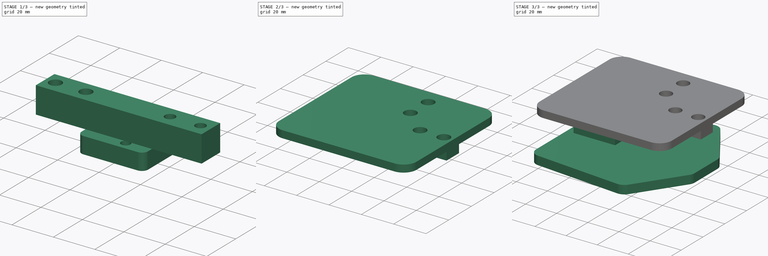
[diagram: build sequence overview — one tinted view per stage of 3, left to right]
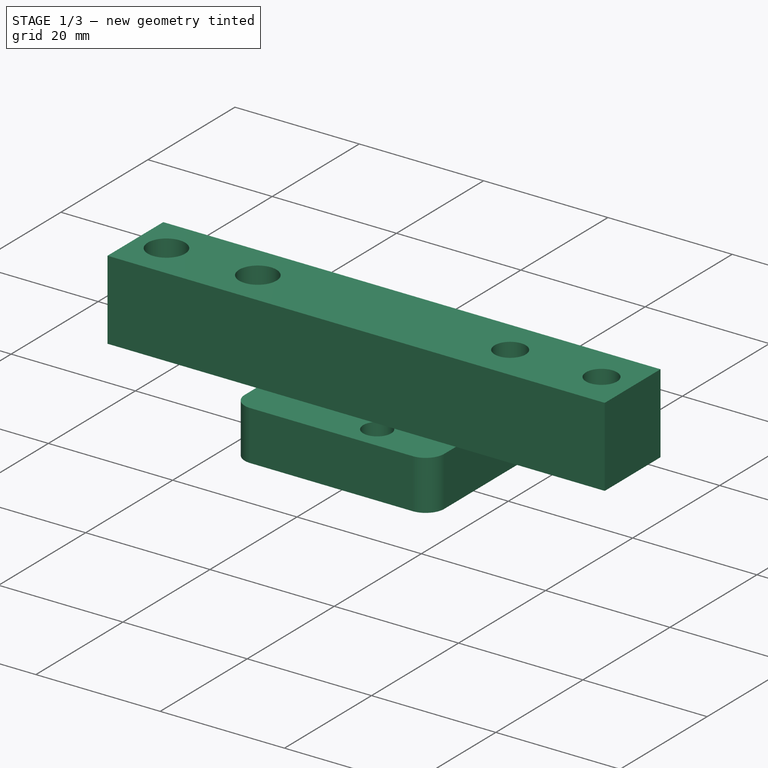
[diagram: stage 1 of 3 — iso view after this stage's code; geometry added in this stage tinted green]
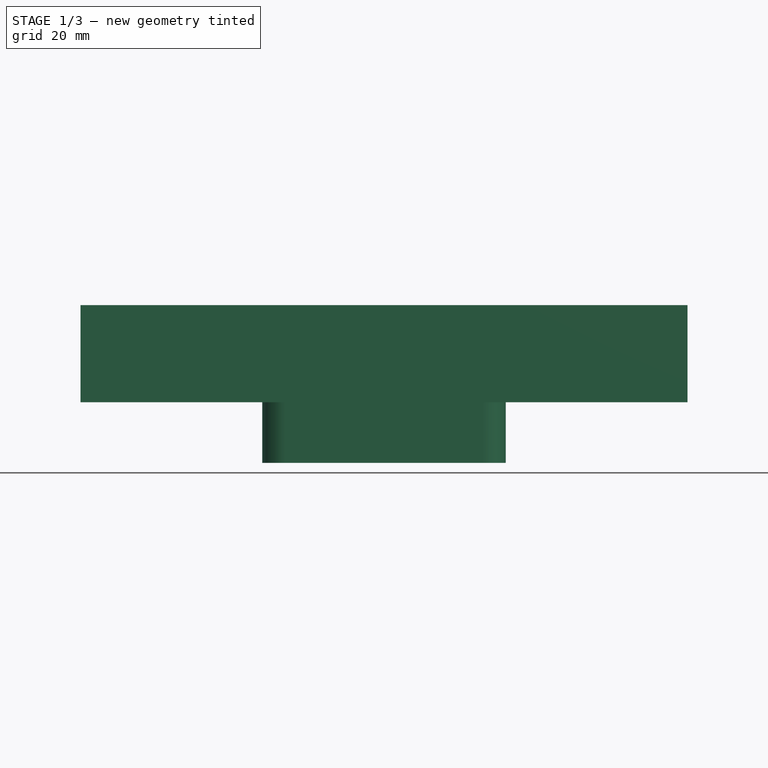
[diagram: stage 1 of 3 — front view after this stage's code; geometry added in this stage tinted green]
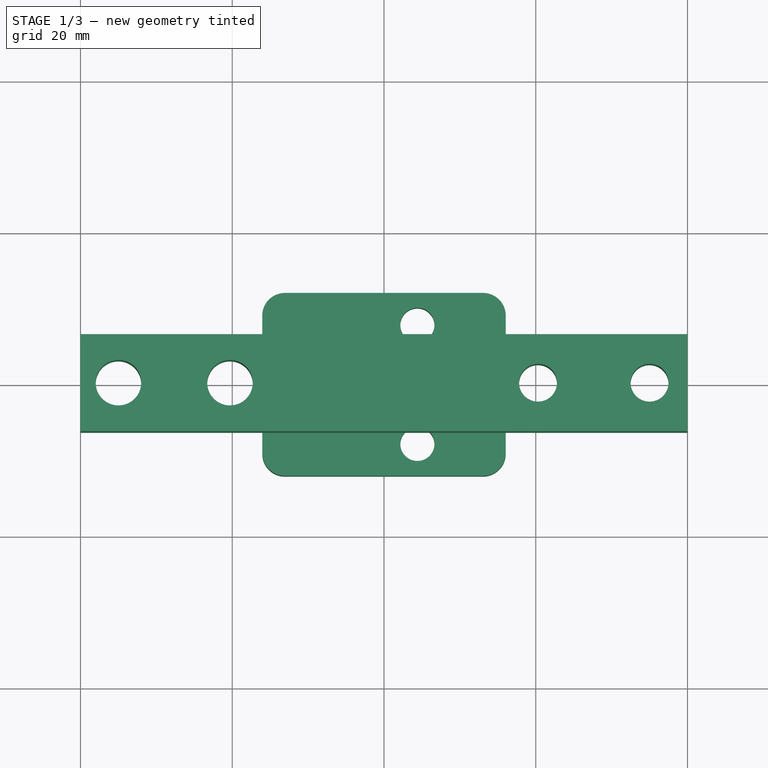
[diagram: stage 1 of 3 — top view after this stage's code; geometry added in this stage tinted green]
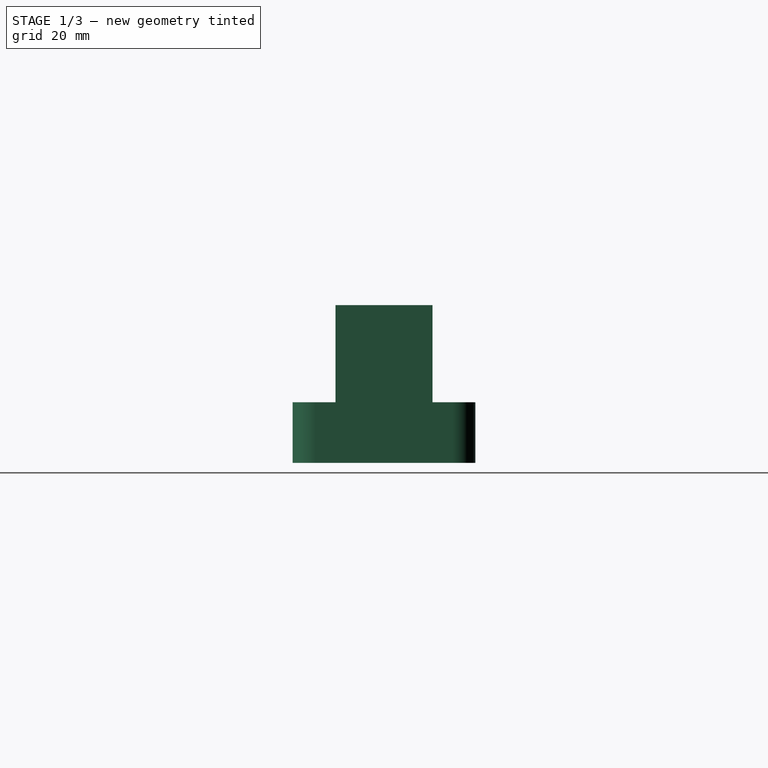
[diagram: stage 1 of 3 — right view after this stage's code; geometry added in this stage tinted green]
FCSTD DOCUMENT  (FreeCAD 1.0RUnknown)
Label: ScalesV2
License: All rights reserved
LicenseURL: https://en.wikipedia.org/wiki/All_rights_reserved
objects: Sketcher::SketchObject×7, PartDesign::Pad×7, PartDesign::Body×4, PartDesign::ShapeBinder×3
note: 42 computed .brp shape members not serialized (recipe doc carries the construction recipe); baked Part::Feature solids carry a one-line shape summary decoded from their .brp

FEATURE [Sketcher::SketchObject] Sketch
  ArcFitTolerance = 1e-06
  AttachmentSupport = -> [XY_Plane]
  FullyConstrained = true
  MakeInternals = false
  MapMode = 5
  sketch-geometry (9):
    g0: LineSegment StartX=40 StartY=-6.4 StartZ=0 EndX=40 EndY=6.4 EndZ=0
    g1: LineSegment StartX=40 StartY=6.4 StartZ=0 EndX=-40 EndY=6.4 EndZ=0
    g2: LineSegment StartX=-40 StartY=6.4 StartZ=0 EndX=-40 EndY=-6.4 EndZ=0
    g3: LineSegment StartX=-40 StartY=-6.4 StartZ=0 EndX=40 EndY=-6.4 EndZ=0
    g4: GeomPoint [constr] X=0 Y=0 Z=0
    g5: Circle CenterX=-35 CenterY=0 CenterZ=0 NormalX=0 NormalY=0 NormalZ=1 AngleXU=0 Radius=3
    g6: Circle CenterX=-20.3 CenterY=0 CenterZ=0 NormalX=0 NormalY=0 NormalZ=1 AngleXU=0 Radius=3
    g7: Circle CenterX=20.3 CenterY=0 CenterZ=0 NormalX=0 NormalY=0 NormalZ=1 AngleXU=0 Radius=2.5
    g8: Circle CenterX=35 CenterY=0 CenterZ=0 NormalX=0 NormalY=0 NormalZ=1 AngleXU=0 Radius=2.5
  constraints (25):
    c: Coincident(g0,g1)
    c: Coincident(g1,g2)
    c: Coincident(g2,g3)
    c: Coincident(g3,g0)
    c: Vertical(g0)
    c: Vertical(g2)
    c: Horizontal(g1)
    c: Horizontal(g3)
    c: Symmetric(g2,g0,g4)
    c: Coincident(g4,g-1)
    c: DistanceX(g1,g1) = 80
    c: Distance(g2,g2) = 12.8
    c: PointOnObject(g5,g-1)
    c: PointOnObject(g6,g-1)
    c: PointOnObject(g7,g-1)
    c: PointOnObject(g8,g-1)
    c: Diameter(g5) = 6
    c: Diameter(g7) = 5
    c: Equal(g5,g6)
    c: Equal(g7,g8)
    c: Distance(g5,g2) = 2
    c: Distance(g5,g6) = 8.7
    c: Distance(g8,g0) = 2.5
    c: Distance(g7,g8) = 9.7
    c: Distance(g6,g7) = 35.1
FEATURE [PartDesign::Pad] Pad
  Direction = (0,0,1)
  Length = 12.8
  Length2 = 10
  Profile = -> Sketch
  ReferenceAxis = -> Sketch [N_Axis]
  Refine = true
  Suppressed = false
  Type = 0
FEATURE [Sketcher::SketchObject] Sketch005
  ArcFitTolerance = 1e-06
  AttachmentSupport = -> [XY_Plane003]
  FullyConstrained = true
  MakeInternals = false
  MapMode = 5
  sketch-geometry (15):
    g0: LineSegment StartX=-13.05 StartY=-12.05 StartZ=0 EndX=13.05 EndY=-12.05 EndZ=0
    g1: LineSegment StartX=16.05 StartY=-9.05 StartZ=0 EndX=16.05 EndY=9.05 EndZ=0
    g2: LineSegment StartX=13.05 StartY=12.05 StartZ=0 EndX=-13.05 EndY=12.05 EndZ=0
    g3: LineSegment StartX=-16.05 StartY=9.05 StartZ=0 EndX=-16.05 EndY=-9.05 EndZ=0
    g4: GeomPoint [constr] X=0 Y=0 Z=0
    g5: Circle CenterX=4.4 CenterY=7.85 CenterZ=0 NormalX=0 NormalY=0 NormalZ=1 AngleXU=0 Radius=2.25
    g6: Circle CenterX=4.4 CenterY=-7.85 CenterZ=0 NormalX=0 NormalY=0 NormalZ=1 AngleXU=0 Radius=2.25
    g7: ArcOfCircle CenterX=13.05 CenterY=9.05 CenterZ=0 NormalX=0 NormalY=0 NormalZ=1 AngleXU=0 Radius=3 StartAngle=-4.3396e-12 EndAngle=1.5708
    g8: GeomPoint [constr] X=16.05 Y=12.05 Z=0
    g9: ArcOfCircle CenterX=-13.05 CenterY=9.05 CenterZ=0 NormalX=0 NormalY=0 NormalZ=1 AngleXU=0 Radius=3 StartAngle=1.5708 EndAngle=3.14159
    g10: GeomPoint [constr] X=-16.05 Y=12.05 Z=0
    g11: ArcOfCircle CenterX=13.05 CenterY=-9.05 CenterZ=0 NormalX=0 NormalY=0 NormalZ=1 AngleXU=0 Radius=3 StartAngle=4.71239 EndAngle=6.28319
    g12: GeomPoint [constr] X=16.05 Y=-12.05 Z=0
    g13: ArcOfCircle CenterX=-13.05 CenterY=-9.05 CenterZ=0 NormalX=0 NormalY=0 NormalZ=1 AngleXU=0 Radius=3 StartAngle=3.14159 EndAngle=4.71239
    g14: GeomPoint [constr] X=-16.05 Y=-12.05 Z=0
  constraints (33):
    c: Horizontal(g0)
    c: Horizontal(g2)
    c: Vertical(g1)
    c: Vertical(g3)
    c: Symmetric(g8,g14,g4)
    c: Coincident(g4,g-1)
    c: DistanceY(g14,g10) = 24.1
    c: DistanceX(g14,g12) = 32.1
    c: Symmetric(g5,g6,g-1)
    c: Equal(g5,g6)
    c: Diameter(g5) = 4.5
    c: Distance(g5,g6) = 11.2
    c: Distance(g5,g1) = 9.4
    c: PointOnObject(g8,g1)
    c: PointOnObject(g8,g2)
    c: Tangent(g1,g7) = -1.5708
    c: Tangent(g2,g7) = -1.5708
    c: PointOnObject(g10,g2)
    c: PointOnObject(g10,g3)
    c: Tangent(g2,g9) = -1.5708
    c: Tangent(g3,g9) = -1.5708
    c: PointOnObject(g12,g0)
    c: PointOnObject(g12,g1)
    c: Tangent(g0,g11) = -1.5708
    c: Tangent(g1,g11) = -1.5708
    c: PointOnObject(g14,g0)
    c: PointOnObject(g14,g3)
    c: Tangent(g0,g13) = -1.5708
    c: Tangent(g3,g13) = -1.5708
    c: Equal(g7,g9)
    c: Equal(g7,g11)
    c: Equal(g7,g13)
    c: Radius(g7) = 3
FEATURE [PartDesign::Pad] Pad005
  Direction = (0,0,1)
  Length = 8
  Length2 = 10
  Profile = -> Sketch005
  ReferenceAxis = -> Sketch005 [N_Axis]
  Refine = true
  Reversed = true
  Suppressed = false
  Type = 0
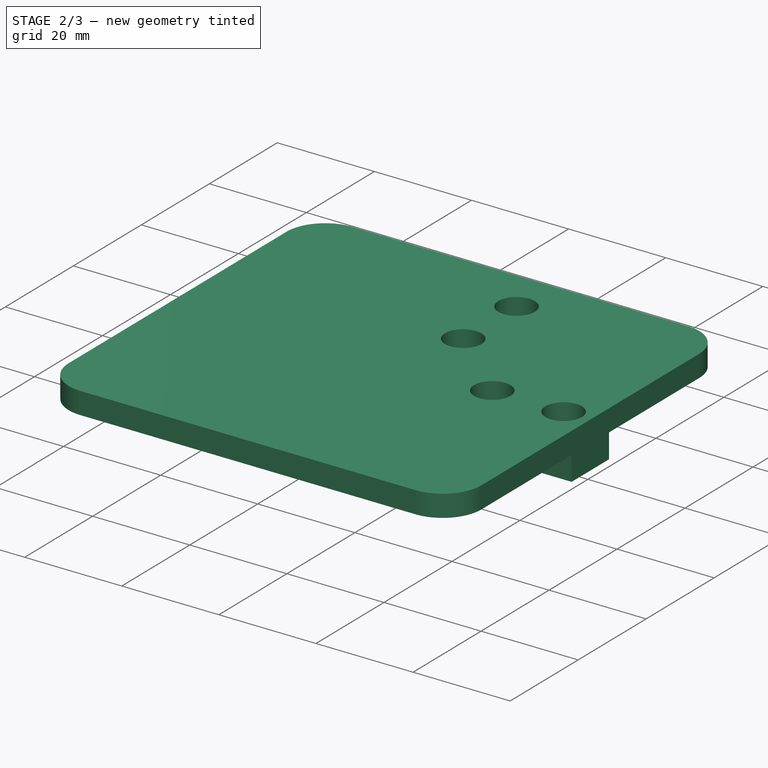
[diagram: stage 2 of 3 — iso view after this stage's code; geometry added in this stage tinted green]
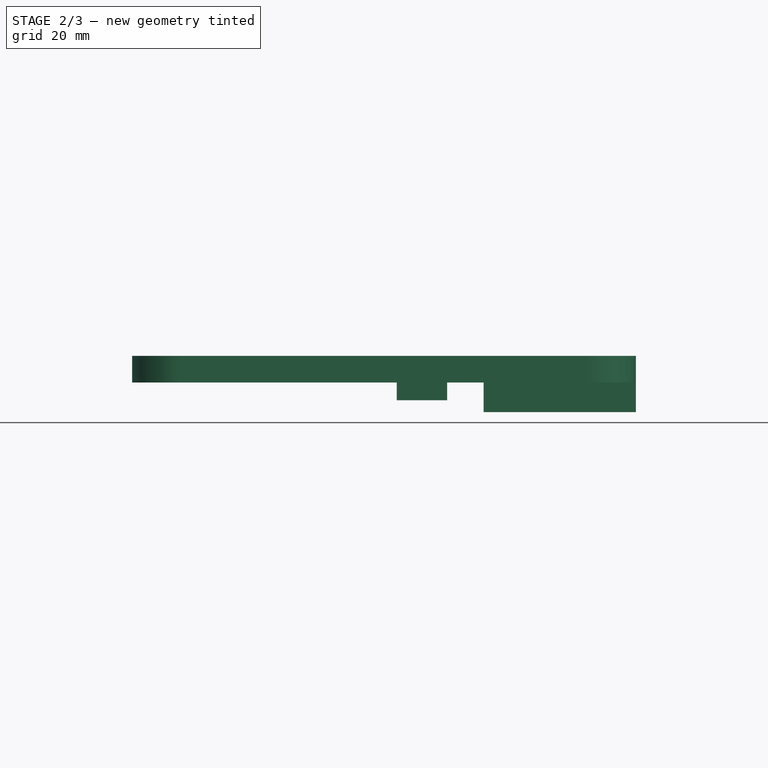
[diagram: stage 2 of 3 — front view after this stage's code; geometry added in this stage tinted green]
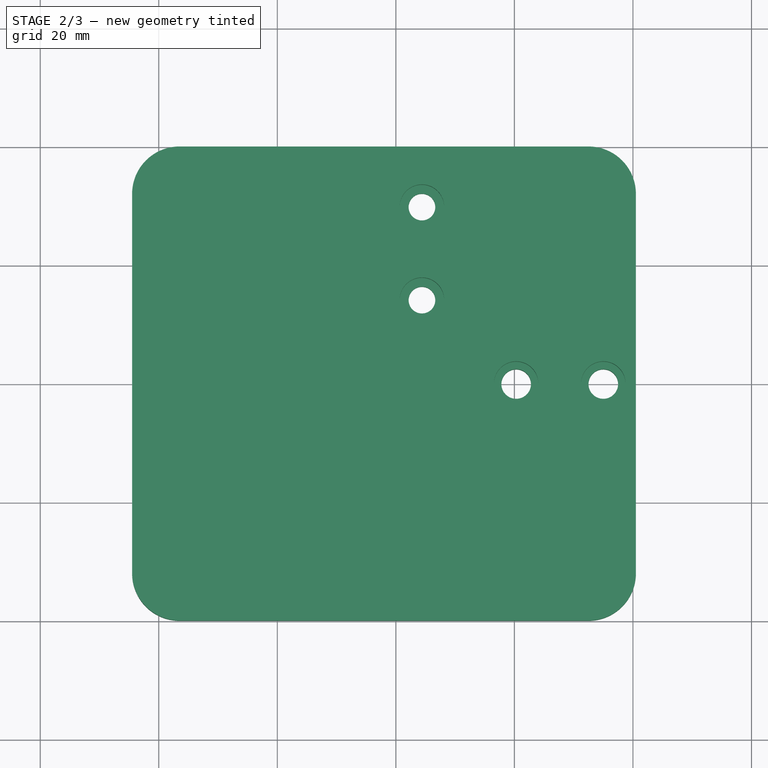
[diagram: stage 2 of 3 — top view after this stage's code; geometry added in this stage tinted green]
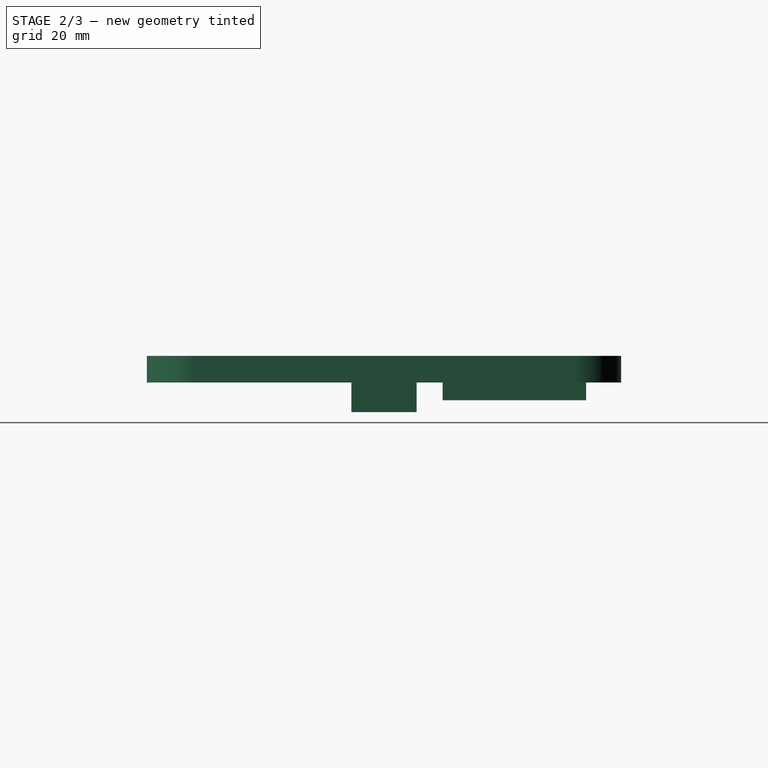
[diagram: stage 2 of 3 — right view after this stage's code; geometry added in this stage tinted green]
FEATURE [PartDesign::Body] Body001  label="Bottom"
  AllowCompound = false
  Group = -> [ShapeBinder,Sketch001,Pad001,Sketch002,Pad002]
  Origin = -> Origin001
  Tip = -> Pad002
FEATURE [PartDesign::ShapeBinder] ShapeBinder001
  Support = -> [Body]
  TraceSupport = false
FEATURE [Sketcher::SketchObject] Sketch003
  ArcFitTolerance = 1e-06
  AttachmentSupport = -> [ShapeBinder001]
  ExternalGeometry = -> [ShapeBinder001]
  FullyConstrained = true
  MakeInternals = false
  MapMode = 5
  Placement = pos=(0,0,12.8) rot=(0,0,1;0rad)
  sketch-geometry (7):
    g0: Circle CenterX=35 CenterY=0 CenterZ=0 NormalX=0 NormalY=0 NormalZ=1 AngleXU=0 Radius=2.5
    g1: Circle CenterX=20.3 CenterY=0 CenterZ=0 NormalX=0 NormalY=0 NormalZ=1 AngleXU=0 Radius=2.5
    g2: LineSegment StartX=14.8 StartY=-5.5 StartZ=0 EndX=14.8 EndY=5.5 EndZ=0
    g3: LineSegment StartX=14.8 StartY=5.5 StartZ=0 EndX=40.5 EndY=5.5 EndZ=0
    g4: LineSegment StartX=40.5 StartY=5.5 StartZ=0 EndX=40.5 EndY=-5.5 EndZ=0
    g5: LineSegment StartX=40.5 StartY=-5.5 StartZ=0 EndX=14.8 EndY=-5.5 EndZ=0
    g6: GeomPoint [constr] X=27.65 Y=0 Z=0
  constraints (17):
    c: Coincident(g0,g-3)
    c: Equal(g0,g-3)
    c: Coincident(g1,g-4)
    c: Equal(g1,g-4)
    c: Coincident(g2,g3)
    c: Coincident(g3,g4)
    c: Coincident(g4,g5)
    c: Coincident(g5,g2)
    c: Vertical(g2)
    c: Vertical(g4)
    c: Horizontal(g3)
    c: Horizontal(g5)
    c: Symmetric(g4,g2,g6)
    c: PointOnObject(g6,g-1)
    c: Distance(g0,g3) = 3
    c: Distance(g1,g2) = 3
    c: Distance(g0,g4) = 3
FEATURE [PartDesign::Pad] Pad003
  Direction = (0,0,1)
  Length = 5
  Length2 = 10
  Profile = -> Sketch003
  ReferenceAxis = -> Sketch003 [N_Axis]
  Refine = true
  Suppressed = false
  Type = 0
FEATURE [PartDesign::Body] Body003  label="WeightUnit"
  AllowCompound = false
  Group = -> [Sketch005,Pad005]
  Origin = -> Origin003
  Placement = pos=(0,22,14) rot=(0,0,1;0rad)
  Tip = -> Pad005
FEATURE [PartDesign::ShapeBinder] ShapeBinder002  label="WeightUnitBinder"
  Placement = pos=(0,22,14) rot=(0,0,1;0rad)
  Support = -> [Body003]
  TraceSupport = false
FEATURE [Sketcher::SketchObject] Sketch004
  ArcFitTolerance = 1e-06
  AttachmentSupport = -> [Pad003]
  ExternalGeometry = -> [Pad003,ShapeBinder002]
  FullyConstrained = true
  MakeInternals = false
  MapMode = 5
  Placement = pos=(0,0,17.8) rot=(0,0,1;0rad)
  sketch-geometry (18):
    g0: LineSegment StartX=40.5 StartY=5.5 StartZ=0 EndX=40.5 EndY=32 EndZ=0
    g1: LineSegment StartX=32.5 StartY=40 StartZ=0 EndX=-36.5 EndY=40 EndZ=0
    g2: LineSegment StartX=-44.5 StartY=32 StartZ=0 EndX=-44.5 EndY=-32 EndZ=0
    g3: LineSegment StartX=-36.5 StartY=-40 StartZ=0 EndX=32.5 EndY=-40 EndZ=0
    g4: LineSegment StartX=40.5 StartY=-32 StartZ=0 EndX=40.5 EndY=-5.5 EndZ=0
    g5: Circle CenterX=35 CenterY=0 CenterZ=0 NormalX=0 NormalY=0 NormalZ=1 AngleXU=0 Radius=3.75
    g6: Circle CenterX=20.3 CenterY=0 CenterZ=0 NormalX=0 NormalY=0 NormalZ=1 AngleXU=0 Radius=3.75
    g7: LineSegment StartX=40.5 StartY=5.5 StartZ=0 EndX=40.5 EndY=-5.5 EndZ=0
    g8: ArcOfCircle CenterX=-36.5 CenterY=32 CenterZ=0 NormalX=0 NormalY=0 NormalZ=1 AngleXU=0 Radius=8 StartAngle=1.5708 EndAngle=3.14159
    g9: GeomPoint [constr] X=-44.5 Y=40 Z=0
    g10: ArcOfCircle CenterX=32.5 CenterY=32 CenterZ=0 NormalX=0 NormalY=0 NormalZ=1 AngleXU=0 Radius=8 StartAngle=1e-16 EndAngle=1.5708
    g11: GeomPoint [constr] X=40.5 Y=40 Z=0
    g12: ArcOfCircle CenterX=-36.5 CenterY=-32 CenterZ=0 NormalX=0 NormalY=0 NormalZ=1 AngleXU=0 Radius=8 StartAngle=3.14159 EndAngle=4.71239
    g13: GeomPoint [constr] X=-44.5 Y=-40 Z=0
    g14: ArcOfCircle CenterX=32.5 CenterY=-32 CenterZ=0 NormalX=0 NormalY=0 NormalZ=1 AngleXU=0 Radius=8 StartAngle=4.71239 EndAngle=6.28319
    g15: GeomPoint [constr] X=40.5 Y=-40 Z=0
    g16: Circle CenterX=4.4 CenterY=29.85 CenterZ=0 NormalX=0 NormalY=0 NormalZ=1 AngleXU=0 Radius=3.75
    g17: Circle CenterX=4.4 CenterY=14.15 CenterZ=0 NormalX=0 NormalY=0 NormalZ=1 AngleXU=0 Radius=3.75
  constraints (39):
    c: Vertical(g0)
    c: Horizontal(g1)
    c: Horizontal(g3)
    c: Vertical(g4)
    c: DistanceX(g9,g11) = 85
    c: Distance(g9,g13) = 80
    c: Coincident(g5,g-3)
    c: Coincident(g6,g-4)
    c: Diameter(g6) = 7.5
    c: Equal(g6,g5)
    c: Coincident(g0,g-5)
    c: Coincident(g4,g-5)
    c: Coincident(g7,g0)
    c: Coincident(g7,g4)
    c: PointOnObject(g9,g1)
    c: PointOnObject(g9,g2)
    c: Tangent(g1,g8) = -1.5708
    c: Tangent(g2,g8) = -1.5708
    c: PointOnObject(g11,g0)
    c: PointOnObject(g11,g1)
    c: Tangent(g0,g10) = -1.5708
    c: Tangent(g1,g10) = -1.5708
    c: PointOnObject(g13,g2)
    c: PointOnObject(g13,g3)
    c: Tangent(g2,g12) = -1.5708
    c: Tangent(g3,g12) = -1.5708
    c: PointOnObject(g15,g3)
    c: PointOnObject(g15,g4)
    c: Tangent(g3,g14) = -1.5708
    c: Tangent(g4,g14) = -1.5708
    c: Equal(g8,g10)
    c: Equal(g8,g12)
    c: Equal(g8,g14)
    c: Radius(g8) = 8
    c: Symmetric(g2,g2,g-1)
    c: Coincident(g16,g-6)
    c: Coincident(g17,g-7)
    c: Equal(g16,g17)
    c: Diameter(g16) = 7.5
FEATURE [PartDesign::Pad] Pad004
  BaseFeature = -> Pad003
  Direction = (0,0,1)
  Length = 4.5
  Length2 = 10
  Profile = -> Sketch004
  ReferenceAxis = -> Sketch004 [N_Axis]
  Refine = true
  Suppressed = false
  Type = 0
FEATURE [Sketcher::SketchObject] Sketch006
  ArcFitTolerance = 1e-06
  AttachmentSupport = -> [Pad004]
  ExternalGeometry = -> [ShapeBinder002]
  FullyConstrained = true
  MakeInternals = false
  MapMode = 5
  Placement = pos=(0,0,17.8) rot=(1,0,0;3.14159rad)
  sketch-geometry (6):
    g0: Circle CenterX=4.4 CenterY=-14.15 CenterZ=0 NormalX=0 NormalY=0 NormalZ=1 AngleXU=0 Radius=2.25
    g1: Circle CenterX=4.4 CenterY=-29.85 CenterZ=0 NormalX=0 NormalY=0 NormalZ=1 AngleXU=0 Radius=2.25
    g2: LineSegment StartX=0.15 StartY=-9.9 StartZ=0 EndX=0.15 EndY=-34.1 EndZ=0
    g3: LineSegment StartX=0.15 StartY=-34.1 StartZ=0 EndX=8.65 EndY=-34.1 EndZ=0
    g4: LineSegment StartX=8.65 StartY=-34.1 StartZ=0 EndX=8.65 EndY=-9.9 EndZ=0
    g5: LineSegment StartX=8.65 StartY=-9.9 StartZ=0 EndX=0.15 EndY=-9.9 EndZ=0
  constraints (16):
    c: Coincident(g0,g-3)
    c: Equal(g0,g-3)
    c: Coincident(g1,g-4)
    c: Equal(g1,g-4)
    c: Coincident(g2,g3)
    c: Coincident(g3,g4)
    c: Coincident(g4,g5)
    c: Coincident(g5,g2)
    c: Vertical(g2)
    c: Vertical(g4)
    c: Horizontal(g3)
    c: Horizontal(g5)
    c: Distance(g0,g5) = 2
    c: Distance(g1,g3) = 2
    c: Distance(g1,g4) = 2
    c: Distance(g1,g2) = 2
FEATURE [PartDesign::Pad] Pad006
  BaseFeature = -> Pad004
  Direction = (0,0,-1)
  Length = 3
  Length2 = 10
  Profile = -> Sketch006
  ReferenceAxis = -> Sketch006 [N_Axis]
  Refine = true
  Suppressed = false
  Type = 0
FEATURE [PartDesign::Body] Body002  label="Top"
  AllowCompound = false
  Group = -> [ShapeBinder001,ShapeBinder002,Sketch003,Pad003,Sketch004,Pad004,Sketch006,Pad006]
  Origin = -> Origin002
  Tip = -> Pad006
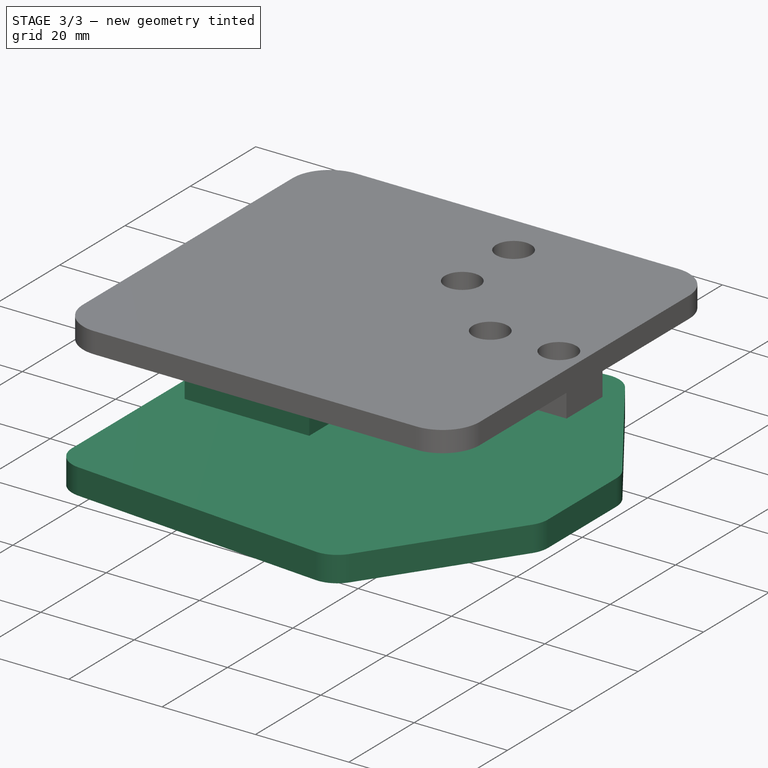
[diagram: stage 3 of 3 — iso view after this stage's code; geometry added in this stage tinted green]
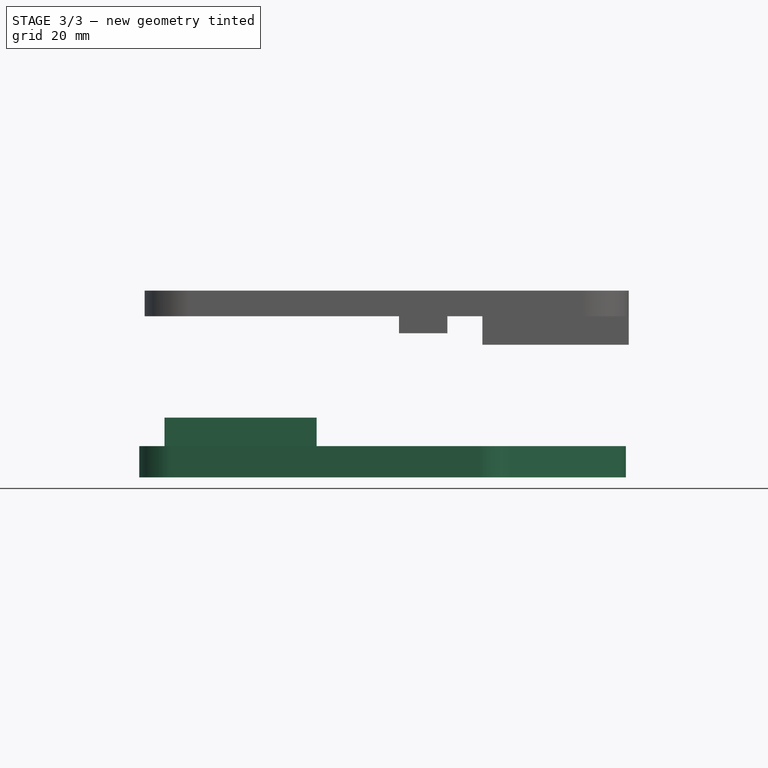
[diagram: stage 3 of 3 — front view after this stage's code; geometry added in this stage tinted green]
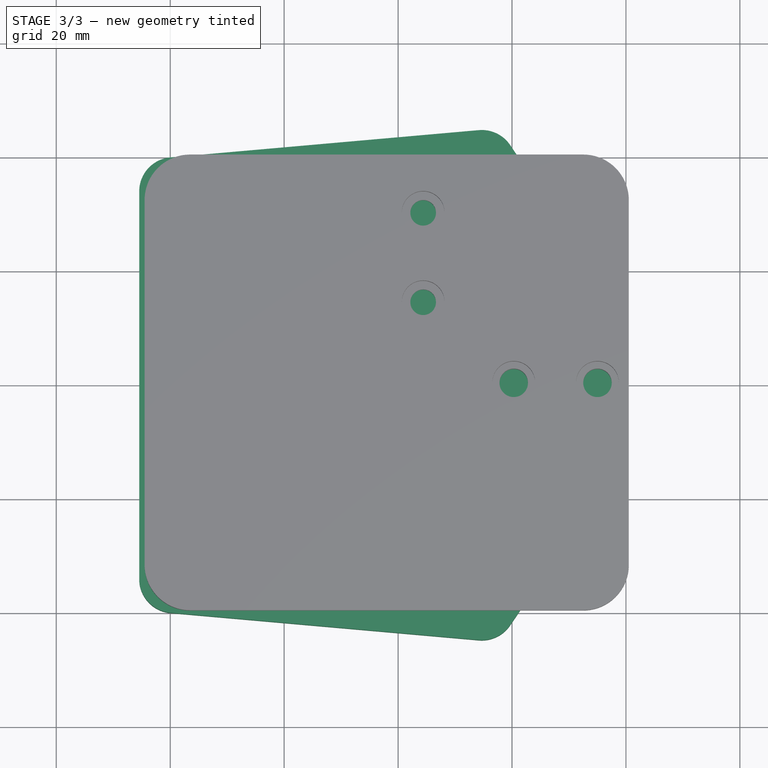
[diagram: stage 3 of 3 — top view after this stage's code; geometry added in this stage tinted green]
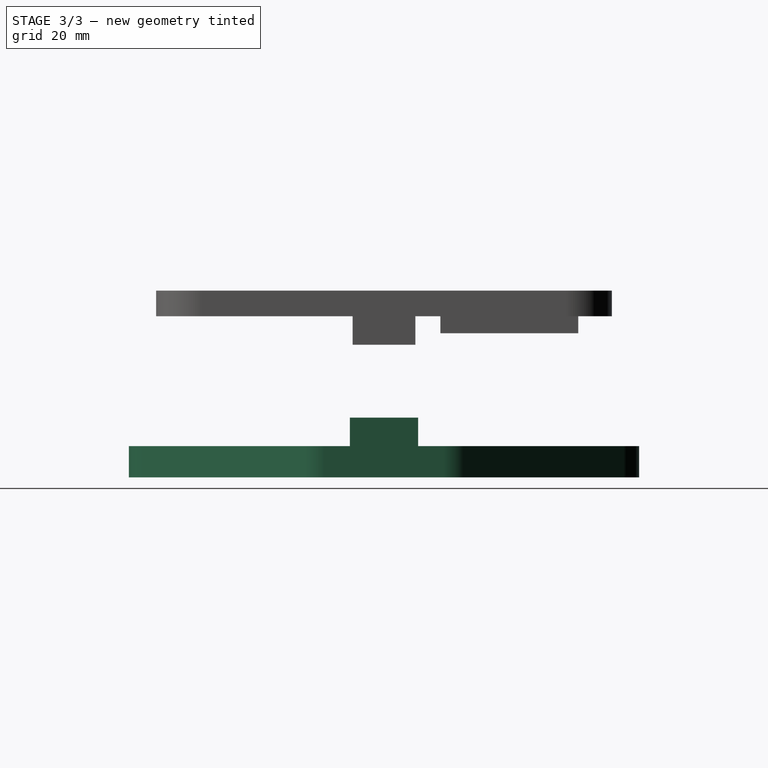
[diagram: stage 3 of 3 — right view after this stage's code; geometry added in this stage tinted green]
FEATURE [PartDesign::Body] Body  label="Load Cell"
  AllowCompound = false
  Group = -> [Sketch,Pad]
  Origin = -> Origin
  Tip = -> Pad
FEATURE [PartDesign::ShapeBinder] ShapeBinder
  Support = -> [Body]
  TraceSupport = false
FEATURE [Sketcher::SketchObject] Sketch001
  ArcFitTolerance = 1e-06
  AttachmentSupport = -> [XY_Plane001]
  ExternalGeometry = -> [ShapeBinder]
  FullyConstrained = true
  MakeInternals = false
  MapMode = 5
  sketch-geometry (7):
    g0: LineSegment StartX=-14.3 StartY=-6 StartZ=0 EndX=-14.3 EndY=6 EndZ=0
    g1: LineSegment StartX=-14.3 StartY=6 StartZ=0 EndX=-41 EndY=6 EndZ=0
    g2: LineSegment StartX=-41 StartY=6 StartZ=0 EndX=-41 EndY=-6 EndZ=0
    g3: LineSegment StartX=-41 StartY=-6 StartZ=0 EndX=-14.3 EndY=-6 EndZ=0
    g4: GeomPoint [constr] X=-27.65 Y=0 Z=0
    g5: Circle CenterX=-35 CenterY=0 CenterZ=0 NormalX=0 NormalY=0 NormalZ=1 AngleXU=0 Radius=3
    g6: Circle CenterX=-20.3 CenterY=0 CenterZ=0 NormalX=0 NormalY=0 NormalZ=1 AngleXU=0 Radius=3
  constraints (17):
    c: Coincident(g0,g1)
    c: Coincident(g1,g2)
    c: Coincident(g2,g3)
    c: Coincident(g3,g0)
    c: Vertical(g0)
    c: Vertical(g2)
    c: Horizontal(g1)
    c: Horizontal(g3)
    c: Symmetric(g2,g0,g4)
    c: PointOnObject(g4,g-1)
    c: Distance(g-3,g2) = 3
    c: Distance(g-3,g1) = 3
    c: Distance(g-4,g0) = 3
    c: Coincident(g5,g-3)
    c: Equal(g5,g-3)
    c: Coincident(g6,g-4)
    c: Equal(g6,g-4)
FEATURE [PartDesign::Pad] Pad001
  Direction = (0,0,1)
  Length = 5
  Length2 = 10
  Profile = -> Sketch001
  ReferenceAxis = -> Sketch001 [N_Axis]
  Refine = true
  Reversed = true
  Suppressed = false
  Type = 0
FEATURE [Sketcher::SketchObject] Sketch002
  ArcFitTolerance = 1e-06
  AttachmentSupport = -> [Pad001]
  ExternalGeometry = -> [Pad001]
  FullyConstrained = true
  MakeInternals = false
  MapMode = 5
  Placement = pos=(0,0,-5) rot=(1,0,0;3.14159rad)
  sketch-geometry (29):
    g0: LineSegment [constr] StartX=-46 StartY=-40 StartZ=0 EndX=-46 EndY=40 EndZ=0
    g1: LineSegment [constr] StartX=-46 StartY=40 StartZ=0 EndX=17.9995 EndY=45.75 EndZ=0
    g2: LineSegment [constr] StartX=-46 StartY=-40 StartZ=0 EndX=17.9995 EndY=-45.75 EndZ=0
    g3: LineSegment [constr] StartX=17.9995 StartY=45.75 StartZ=0 EndX=40.7 EndY=12.5 EndZ=0
    g4: LineSegment [constr] StartX=17.9995 StartY=-45.75 StartZ=0 EndX=40.7 EndY=-12.5 EndZ=0
    g5: LineSegment [constr] StartX=40.7 StartY=-12.5 StartZ=0 EndX=40.7 EndY=12.5 EndZ=0
    g6: LineSegment StartX=-39.9746 StartY=39.9775 StartZ=0 EndX=14.1708 EndY=44.7618 EndZ=0
    g7: LineSegment StartX=19.6602 StartY=42.1594 StartZ=0 EndX=38.9446 EndY=13.806 EndZ=0
    g8: LineSegment StartX=39.9834 StartY=10.4316 StartZ=0 EndX=39.9834 EndY=-10.4316 EndZ=0
    g9: LineSegment StartX=38.9446 StartY=-13.806 StartZ=0 EndX=19.6602 EndY=-42.1594 EndZ=0
    g10: LineSegment StartX=14.1708 StartY=-44.7618 StartZ=0 EndX=-39.9746 EndY=-39.9775 EndZ=0
    g11: LineSegment StartX=-45.4465 StartY=-34.0007 StartZ=0 EndX=-45.4465 EndY=34.0007 EndZ=0
    g12: LineSegment [constr] StartX=-46 StartY=40 StartZ=0 EndX=-45.4465 EndY=39.494 EndZ=0
    g13: LineSegment [constr] StartX=17.6793 StartY=45.0718 StartZ=0 EndX=17.9995 EndY=45.75 EndZ=0
    g14: LineSegment [constr] StartX=39.9834 StartY=12.2787 StartZ=0 EndX=40.7 EndY=12.5 EndZ=0
    g15: ArcOfCircle CenterX=-39.4465 CenterY=34.0007 CenterZ=0 NormalX=0 NormalY=0 NormalZ=1 AngleXU=0 Radius=6 StartAngle=1.65893 EndAngle=3.14159
    g16: GeomPoint [constr] X=-45.4465 Y=39.494 Z=0
    g17: ArcOfCircle CenterX=-39.4465 CenterY=-34.0007 CenterZ=0 NormalX=0 NormalY=0 NormalZ=1 AngleXU=0 Radius=6 StartAngle=3.14159 EndAngle=4.62426
    g18: GeomPoint [constr] X=-45.4465 Y=-39.494 Z=0
    g19: ArcOfCircle CenterX=14.6989 CenterY=38.7851 CenterZ=0 NormalX=0 NormalY=0 NormalZ=1 AngleXU=0 Radius=6 StartAngle=0.597276 EndAngle=1.65893
    g20: GeomPoint [constr] X=17.6793 Y=45.0718 Z=0
    g21: ArcOfCircle CenterX=14.6989 CenterY=-38.7851 CenterZ=0 NormalX=0 NormalY=0 NormalZ=1 AngleXU=0 Radius=6 StartAngle=4.62426 EndAngle=5.68591
    g22: GeomPoint [constr] X=17.6793 Y=-45.0718 Z=0
    g23: ArcOfCircle CenterX=33.9834 CenterY=10.4316 CenterZ=0 NormalX=0 NormalY=0 NormalZ=1 AngleXU=0 Radius=6 StartAngle=1e-16 EndAngle=0.597276
    g24: GeomPoint [constr] X=39.9834 Y=12.2787 Z=0
    g25: ArcOfCircle CenterX=33.9834 CenterY=-10.4316 CenterZ=0 NormalX=0 NormalY=0 NormalZ=1 AngleXU=0 Radius=6 StartAngle=5.68591 EndAngle=6.28319
    g26: GeomPoint [constr] X=39.9834 Y=-12.2787 Z=0
    g27: Circle CenterX=-35 CenterY=0 CenterZ=0 NormalX=0 NormalY=0 NormalZ=1 AngleXU=0 Radius=4.25
    g28: Circle CenterX=-20.3 CenterY=0 CenterZ=0 NormalX=0 NormalY=0 NormalZ=1 AngleXU=0 Radius=4.25
  constraints (67):
    c: Symmetric(g0,g0,g-1)
    c: DistanceY(g0,g0) = 80
    c: Coincident(g1,g0)
    c: Coincident(g2,g0)
    c: Symmetric(g1,g2,g-1)
    c: Coincident(g3,g1)
    c: Coincident(g4,g2)
    c: Coincident(g5,g4)
    c: Coincident(g5,g3)
    c: Symmetric(g3,g4,g-1)
    c: Distance(g1,g2) = 91.5
    c: DistanceY(g5,g5) = 25
    c: Distance(g0,g1) = 107
    c: Distance(g5,g0) = 86.7
    c: Distance(g0,g-3) = 5
    c: Symmetric(g16,g18,g-1)
    c: Symmetric(g20,g22,g-1)
    c: Symmetric(g24,g26,g-1)
    c: Coincident(g12,g0)
    c: Angle(g0,g1) = 1.6604
    c: Angle(g0,g12) = 0.8302
    c: Coincident(g12,g16)
    c: Distance(g12,g12) = 0.75
    c: Angle(g1,g3) = 2.08023
    c: Coincident(g13,g20)
    c: Coincident(g13,g1)
    c: Angle(g13,g3) = 1.04011
    c: Distance(g13,g13) = 0.75
    c: Angle(g3,g5) = 2.54256
    c: Coincident(g14,g24)
    c: Coincident(g14,g3)
    c: Angle(g14,g5) = 1.27128
    c: Distance(g14,g14) = 0.75
    c: PointOnObject(g16,g6)
    c: PointOnObject(g16,g11)
    c: Tangent(g6,g15) = 1.5708
    c: Tangent(g11,g15) = 1.5708
    c: Radius(g15) = 6
    c: PointOnObject(g18,g10)
    c: PointOnObject(g18,g11)
    c: Tangent(g10,g17) = 1.5708
    c: Tangent(g11,g17) = 1.5708
    c: Equal(g15,g17)
    c: PointOnObject(g20,g6)
    c: PointOnObject(g20,g7)
    c: Tangent(g6,g19) = 1.5708
    c: Tangent(g7,g19) = 1.5708
    c: Radius(g19) = 6
    c: PointOnObject(g22,g9)
    c: PointOnObject(g22,g10)
    c: Tangent(g9,g21) = 1.5708
    c: Tangent(g10,g21) = 1.5708
    c: Equal(g19,g21)
    c: PointOnObject(g24,g7)
    c: PointOnObject(g24,g8)
    c: Tangent(g7,g23) = 1.5708
    c: Tangent(g8,g23) = 1.5708
    c: PointOnObject(g26,g8)
    c: PointOnObject(g26,g9)
    c: Tangent(g8,g25) = 1.5708
    c: Tangent(g9,g25) = 1.5708
    c: Equal(g23,g25)
    c: Radius(g23) = 6
    c: Coincident(g27,g-4)
    c: Coincident(g28,g-5)
    c: Equal(g27,g28)
    c: Diameter(g27) = 8.5
FEATURE [PartDesign::Pad] Pad002
  BaseFeature = -> Pad001
  Direction = (0,0,-1)
  Length = 5.5
  Length2 = 10
  Profile = -> Sketch002
  ReferenceAxis = -> Sketch002 [N_Axis]
  Refine = true
  Suppressed = false
  Type = 0
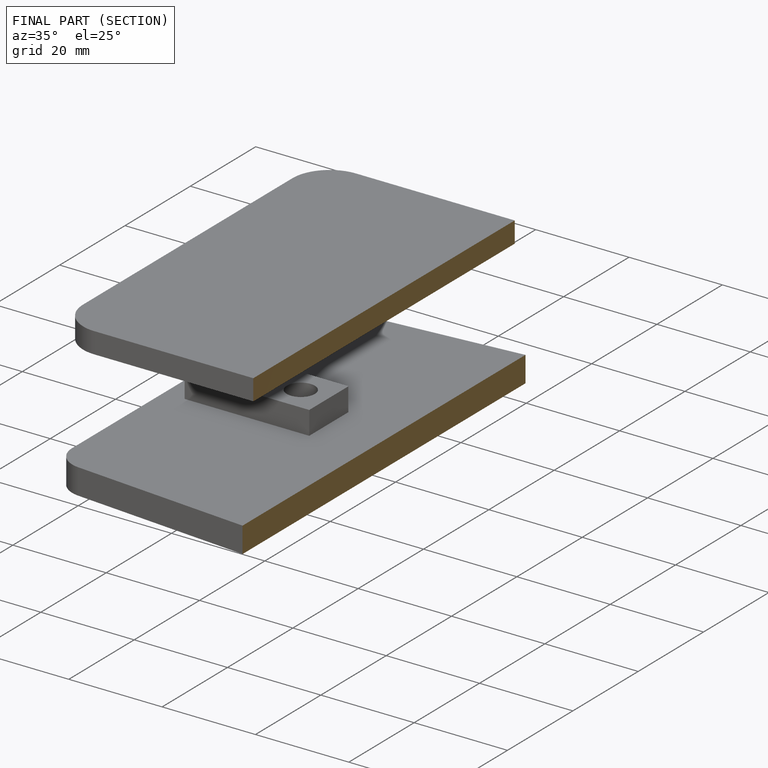
[diagram: finished part — half-section view (interior)]
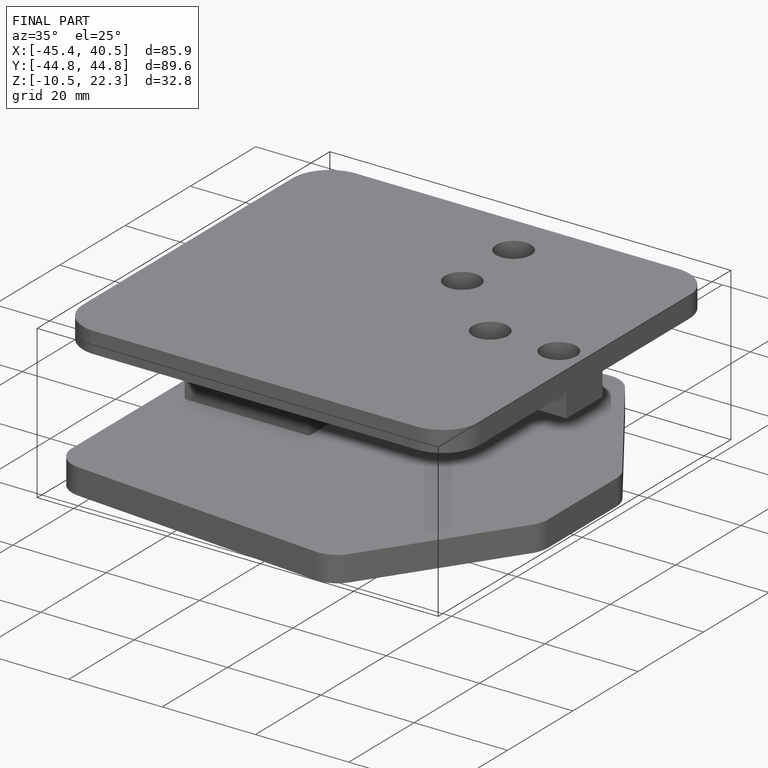
[diagram: finished part — iso view with bounding-box wireframe]
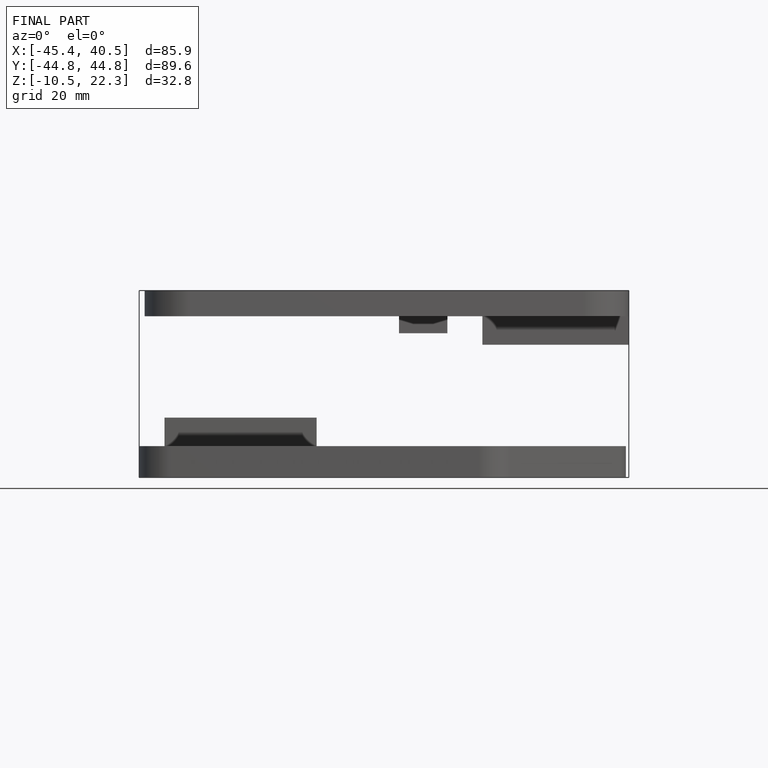
[diagram: finished part — front view with bounding-box wireframe]
